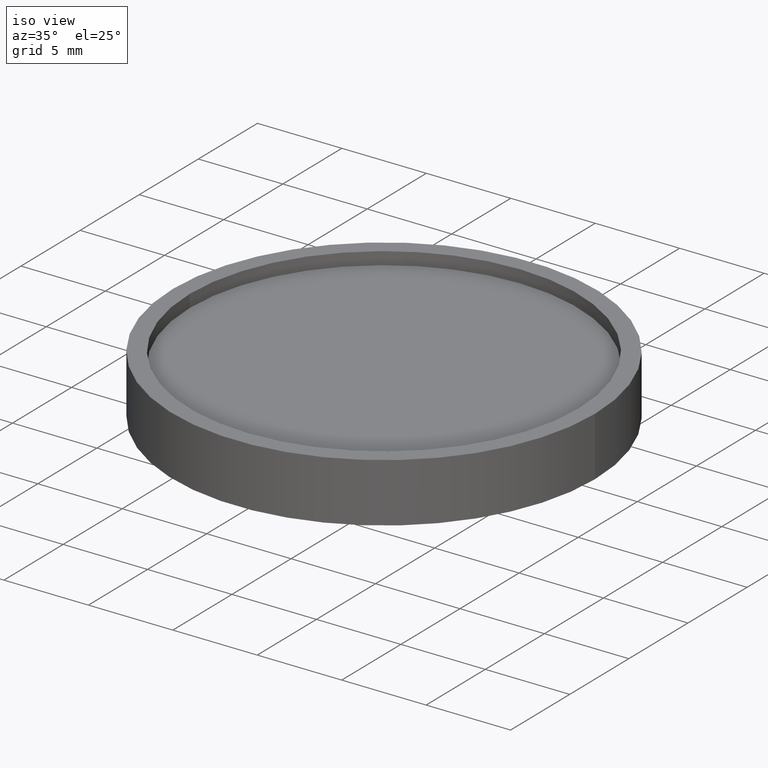
[diagram: clean part render]
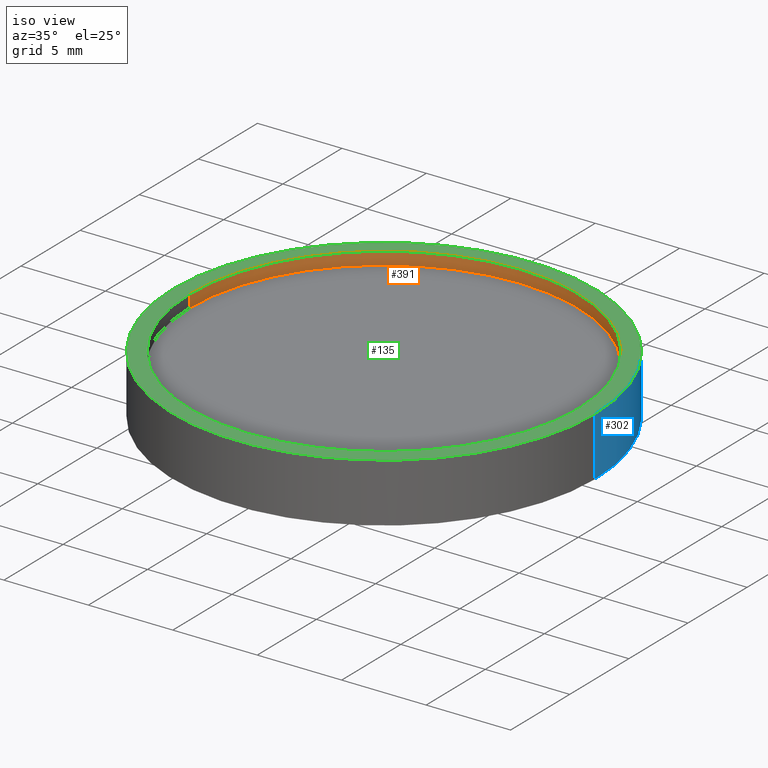
[diagram: same view with three faces highlighted in distinct colors, each labeled with its STEP entity id]
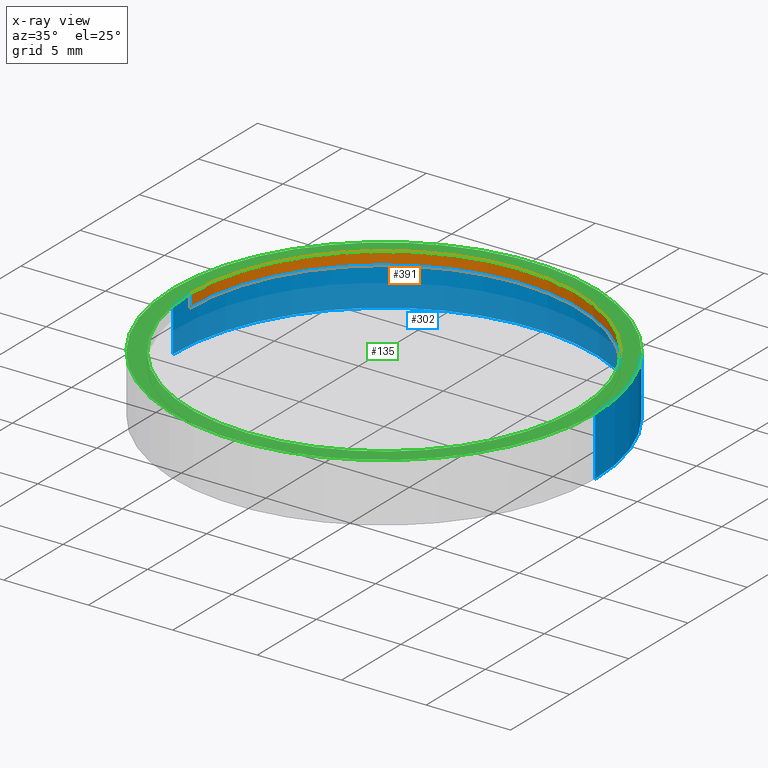
[diagram: x-ray of the same camera — body ghosted, the three highlighted faces saturated]
A machine part, iso view with three faces highlighted in distinct colors.
The next image is the same camera in x-ray (body ghosted, the three faces saturated) — at least one of them is partly hidden behind the body in this view.
Their STEP definitions:

[orange] entity #391 — the highlighted cylindrical surface (partial cylindrical patch) has radius 11.5 mm, axis along (-0, -0, 1).
#26 = ORIENTED_EDGE ( 'NONE', *, *, #51, .F. ) ;
#35 = VERTEX_POINT ( 'NONE', #75 ) ;
#51 = EDGE_CURVE ( 'NONE', #35, #282, #297, .T. ) ;
#75 = CARTESIAN_POINT ( 'NONE',  ( 11.50000000000000000, 0.000000000000000000, 2.750000000000000000 ) ) ;
#82 = CYLINDRICAL_SURFACE ( 'NONE', #162, 11.50000000000000000 ) ;
#84 = CARTESIAN_POINT ( 'NONE',  ( 11.50000000000000000, 0.000000000000000000, 3.500000000000000000 ) ) ;
#92 = VECTOR ( 'NONE', #166, 1000.000000000000000 ) ;
#110 = LINE ( 'NONE', #269, #228 ) ;
#122 = CARTESIAN_POINT ( 'NONE',  ( -11.50000000000000000, 1.408343819019456176E-15, 3.500000000000000000 ) ) ;
#162 = AXIS2_PLACEMENT_3D ( 'NONE', #409, #284, #412 ) ;
#166 = DIRECTION ( 'NONE',  ( -0.000000000000000000, -0.000000000000000000, 1.000000000000000000 ) ) ;
#167 = ORIENTED_EDGE ( 'NONE', *, *, #220, .T. ) ;
#179 = CARTESIAN_POINT ( 'NONE',  ( 0.000000000000000000, 0.000000000000000000, 2.750000000000000000 ) ) ;
#186 = FACE_OUTER_BOUND ( 'NONE', #295, .T. ) ;
#196 = CARTESIAN_POINT ( 'NONE',  ( 11.50000000000000000, 0.000000000000000000, 2.750000000000000000 ) ) ;
#201 = ORIENTED_EDGE ( 'NONE', *, *, #206, .T. ) ;
#206 = EDGE_CURVE ( 'NONE', #35, #362, #285, .T. ) ;
#217 = CARTESIAN_POINT ( 'NONE',  ( 0.000000000000000000, 0.000000000000000000, 3.500000000000000000 ) ) ;
#220 = EDGE_CURVE ( 'NONE', #362, #365, #227, .T. ) ;
#227 = CIRCLE ( 'NONE', #344, 11.50000000000000000 ) ;
#228 = VECTOR ( 'NONE', #395, 1000.000000000000000 ) ;
#248 = ORIENTED_EDGE ( 'NONE', *, *, #259, .F. ) ;
#259 = EDGE_CURVE ( 'NONE', #282, #365, #110, .T. ) ;
#261 = CARTESIAN_POINT ( 'NONE',  ( -11.50000000000000000, 1.408343819019456176E-15, 2.750000000000000000 ) ) ;
#269 = CARTESIAN_POINT ( 'NONE',  ( -11.50000000000000000, 1.408343819019456176E-15, 2.750000000000000000 ) ) ;
#282 = VERTEX_POINT ( 'NONE', #261 ) ;
#284 = DIRECTION ( 'NONE',  ( -0.000000000000000000, -0.000000000000000000, 1.000000000000000000 ) ) ;
#285 = LINE ( 'NONE', #196, #92 ) ;
#294 = DIRECTION ( 'NONE',  ( 1.000000000000000000, 0.000000000000000000, 0.000000000000000000 ) ) ;
#295 = EDGE_LOOP ( 'NONE', ( #248, #26, #201, #167 ) ) ;
#297 = CIRCLE ( 'NONE', #305, 11.50000000000000000 ) ;
#303 = DIRECTION ( 'NONE',  ( 1.000000000000000000, 0.000000000000000000, 0.000000000000000000 ) ) ;
#305 = AXIS2_PLACEMENT_3D ( 'NONE', #179, #397, #303 ) ;
#344 = AXIS2_PLACEMENT_3D ( 'NONE', #217, #378, #294 ) ;
#362 = VERTEX_POINT ( 'NONE', #84 ) ;
#365 = VERTEX_POINT ( 'NONE', #122 ) ;
#378 = DIRECTION ( 'NONE',  ( 0.000000000000000000, 0.000000000000000000, 1.000000000000000000 ) ) ;
#391 = ADVANCED_FACE ( 'NONE', ( #186 ), #82, .F. ) ;
#395 = DIRECTION ( 'NONE',  ( -0.000000000000000000, -0.000000000000000000, 1.000000000000000000 ) ) ;
#397 = DIRECTION ( 'NONE',  ( 0.000000000000000000, 0.000000000000000000, 1.000000000000000000 ) ) ;
#409 = CARTESIAN_POINT ( 'NONE',  ( 0.000000000000000000, 0.000000000000000000, 2.750000000000000000 ) ) ;
#412 = DIRECTION ( 'NONE',  ( 1.000000000000000000, 0.000000000000000000, 0.000000000000000000 ) ) ;

[blue] entity #302 — the highlighted cylindrical surface (partial cylindrical patch) has radius 12.5 mm, axis along (-0, -0, -1).
#14 = VECTOR ( 'NONE', #311, 1000.000000000000000 ) ;
#16 = EDGE_CURVE ( 'NONE', #151, #324, #387, .T. ) ;
#25 = AXIS2_PLACEMENT_3D ( 'NONE', #171, #141, #408 ) ;
#40 = AXIS2_PLACEMENT_3D ( 'NONE', #351, #376, #143 ) ;
#58 = DIRECTION ( 'NONE',  ( -0.000000000000000000, -0.000000000000000000, -1.000000000000000000 ) ) ;
#60 = CARTESIAN_POINT ( 'NONE',  ( -12.50000000000000000, 0.000000000000000000, 3.500000000000000000 ) ) ;
#63 = DIRECTION ( 'NONE',  ( 0.000000000000000000, 0.000000000000000000, 1.000000000000000000 ) ) ;
#76 = EDGE_CURVE ( 'NONE', #138, #151, #235, .T. ) ;
#78 = CARTESIAN_POINT ( 'NONE',  ( 12.50000000000000000, 1.530808498934191521E-15, 3.500000000000000000 ) ) ;
#101 = ORIENTED_EDGE ( 'NONE', *, *, #401, .F. ) ;
#113 = FACE_OUTER_BOUND ( 'NONE', #329, .T. ) ;
#138 = VERTEX_POINT ( 'NONE', #78 ) ;
#141 = DIRECTION ( 'NONE',  ( 0.000000000000000000, 0.000000000000000000, 1.000000000000000000 ) ) ;
#143 = DIRECTION ( 'NONE',  ( -1.000000000000000000, 0.000000000000000000, 0.000000000000000000 ) ) ;
#151 = VERTEX_POINT ( 'NONE', #371 ) ;
#157 = DIRECTION ( 'NONE',  ( 1.000000000000000000, 0.000000000000000000, 0.000000000000000000 ) ) ;
#171 = CARTESIAN_POINT ( 'NONE',  ( 0.000000000000000000, 0.000000000000000000, 0.000000000000000000 ) ) ;
#180 = CARTESIAN_POINT ( 'NONE',  ( -12.50000000000000000, 0.000000000000000000, 3.500000000000000000 ) ) ;
#211 = LINE ( 'NONE', #60, #346 ) ;
#212 = ORIENTED_EDGE ( 'NONE', *, *, #76, .T. ) ;
#214 = CYLINDRICAL_SURFACE ( 'NONE', #40, 12.50000000000000000 ) ;
#235 = LINE ( 'NONE', #239, #14 ) ;
#239 = CARTESIAN_POINT ( 'NONE',  ( 12.50000000000000000, 1.530808498934191521E-15, 3.500000000000000000 ) ) ;
#243 = CARTESIAN_POINT ( 'NONE',  ( -12.50000000000000000, 0.000000000000000000, 0.000000000000000000 ) ) ;
#260 = ORIENTED_EDGE ( 'NONE', *, *, #16, .T. ) ;
#277 = CIRCLE ( 'NONE', #339, 12.50000000000000000 ) ;
#302 = ADVANCED_FACE ( 'NONE', ( #113 ), #214, .T. ) ;
#311 = DIRECTION ( 'NONE',  ( -0.000000000000000000, -0.000000000000000000, -1.000000000000000000 ) ) ;
#320 = CARTESIAN_POINT ( 'NONE',  ( 0.000000000000000000, 0.000000000000000000, 3.500000000000000000 ) ) ;
#324 = VERTEX_POINT ( 'NONE', #243 ) ;
#329 = EDGE_LOOP ( 'NONE', ( #101, #212, #260, #394 ) ) ;
#339 = AXIS2_PLACEMENT_3D ( 'NONE', #320, #63, #157 ) ;
#346 = VECTOR ( 'NONE', #58, 1000.000000000000000 ) ;
#350 = EDGE_CURVE ( 'NONE', #390, #324, #211, .T. ) ;
#351 = CARTESIAN_POINT ( 'NONE',  ( 0.000000000000000000, 0.000000000000000000, 3.500000000000000000 ) ) ;
#371 = CARTESIAN_POINT ( 'NONE',  ( 12.50000000000000000, 1.530808498934191521E-15, 0.000000000000000000 ) ) ;
#376 = DIRECTION ( 'NONE',  ( -0.000000000000000000, -0.000000000000000000, -1.000000000000000000 ) ) ;
#387 = CIRCLE ( 'NONE', #25, 12.50000000000000000 ) ;
#390 = VERTEX_POINT ( 'NONE', #180 ) ;
#394 = ORIENTED_EDGE ( 'NONE', *, *, #350, .F. ) ;
#401 = EDGE_CURVE ( 'NONE', #138, #390, #277, .T. ) ;
#408 = DIRECTION ( 'NONE',  ( 1.000000000000000000, 0.000000000000000000, 0.000000000000000000 ) ) ;

[green] entity #135 — the highlighted planar face has unit normal (0, 0, 1).
#3 = ORIENTED_EDGE ( 'NONE', *, *, #220, .F. ) ;
#13 = PLANE ( 'NONE',  #263 ) ;
#21 = AXIS2_PLACEMENT_3D ( 'NONE', #90, #341, #184 ) ;
#37 = CIRCLE ( 'NONE', #21, 12.50000000000000000 ) ;
#63 = DIRECTION ( 'NONE',  ( 0.000000000000000000, 0.000000000000000000, 1.000000000000000000 ) ) ;
#68 = ORIENTED_EDGE ( 'NONE', *, *, #257, .F. ) ;
#78 = CARTESIAN_POINT ( 'NONE',  ( 12.50000000000000000, 1.530808498934191521E-15, 3.500000000000000000 ) ) ;
#84 = CARTESIAN_POINT ( 'NONE',  ( 11.50000000000000000, 0.000000000000000000, 3.500000000000000000 ) ) ;
#90 = CARTESIAN_POINT ( 'NONE',  ( 0.000000000000000000, 0.000000000000000000, 3.500000000000000000 ) ) ;
#109 = CARTESIAN_POINT ( 'NONE',  ( 0.000000000000000000, 0.000000000000000000, 3.500000000000000000 ) ) ;
#122 = CARTESIAN_POINT ( 'NONE',  ( -11.50000000000000000, 1.408343819019456176E-15, 3.500000000000000000 ) ) ;
#135 = ADVANCED_FACE ( 'NONE', ( #306, #404 ), #13, .T. ) ;
#138 = VERTEX_POINT ( 'NONE', #78 ) ;
#157 = DIRECTION ( 'NONE',  ( 1.000000000000000000, 0.000000000000000000, 0.000000000000000000 ) ) ;
#180 = CARTESIAN_POINT ( 'NONE',  ( -12.50000000000000000, 0.000000000000000000, 3.500000000000000000 ) ) ;
#183 = ORIENTED_EDGE ( 'NONE', *, *, #401, .T. ) ;
#184 = DIRECTION ( 'NONE',  ( 1.000000000000000000, 0.000000000000000000, 0.000000000000000000 ) ) ;
#217 = CARTESIAN_POINT ( 'NONE',  ( 0.000000000000000000, 0.000000000000000000, 3.500000000000000000 ) ) ;
#220 = EDGE_CURVE ( 'NONE', #362, #365, #227, .T. ) ;
#227 = CIRCLE ( 'NONE', #344, 11.50000000000000000 ) ;
#233 = EDGE_LOOP ( 'NONE', ( #388, #183 ) ) ;
#244 = DIRECTION ( 'NONE',  ( 1.000000000000000000, 0.000000000000000000, -0.000000000000000000 ) ) ;
#257 = EDGE_CURVE ( 'NONE', #365, #362, #398, .T. ) ;
#263 = AXIS2_PLACEMENT_3D ( 'NONE', #109, #373, #244 ) ;
#277 = CIRCLE ( 'NONE', #339, 12.50000000000000000 ) ;
#288 = EDGE_CURVE ( 'NONE', #390, #138, #37, .T. ) ;
#294 = DIRECTION ( 'NONE',  ( 1.000000000000000000, 0.000000000000000000, 0.000000000000000000 ) ) ;
#300 = DIRECTION ( 'NONE',  ( 1.000000000000000000, 0.000000000000000000, 0.000000000000000000 ) ) ;
#306 = FACE_BOUND ( 'NONE', #325, .T. ) ;
#308 = AXIS2_PLACEMENT_3D ( 'NONE', #367, #370, #300 ) ;
#320 = CARTESIAN_POINT ( 'NONE',  ( 0.000000000000000000, 0.000000000000000000, 3.500000000000000000 ) ) ;
#325 = EDGE_LOOP ( 'NONE', ( #3, #68 ) ) ;
#339 = AXIS2_PLACEMENT_3D ( 'NONE', #320, #63, #157 ) ;
#341 = DIRECTION ( 'NONE',  ( 0.000000000000000000, 0.000000000000000000, 1.000000000000000000 ) ) ;
#344 = AXIS2_PLACEMENT_3D ( 'NONE', #217, #378, #294 ) ;
#362 = VERTEX_POINT ( 'NONE', #84 ) ;
#365 = VERTEX_POINT ( 'NONE', #122 ) ;
#367 = CARTESIAN_POINT ( 'NONE',  ( 0.000000000000000000, 0.000000000000000000, 3.500000000000000000 ) ) ;
#370 = DIRECTION ( 'NONE',  ( 0.000000000000000000, 0.000000000000000000, 1.000000000000000000 ) ) ;
#373 = DIRECTION ( 'NONE',  ( 0.000000000000000000, 0.000000000000000000, 1.000000000000000000 ) ) ;
#378 = DIRECTION ( 'NONE',  ( 0.000000000000000000, 0.000000000000000000, 1.000000000000000000 ) ) ;
#388 = ORIENTED_EDGE ( 'NONE', *, *, #288, .T. ) ;
#390 = VERTEX_POINT ( 'NONE', #180 ) ;
#398 = CIRCLE ( 'NONE', #308, 11.50000000000000000 ) ;
#401 = EDGE_CURVE ( 'NONE', #138, #390, #277, .T. ) ;
#404 = FACE_OUTER_BOUND ( 'NONE', #233, .T. ) ;